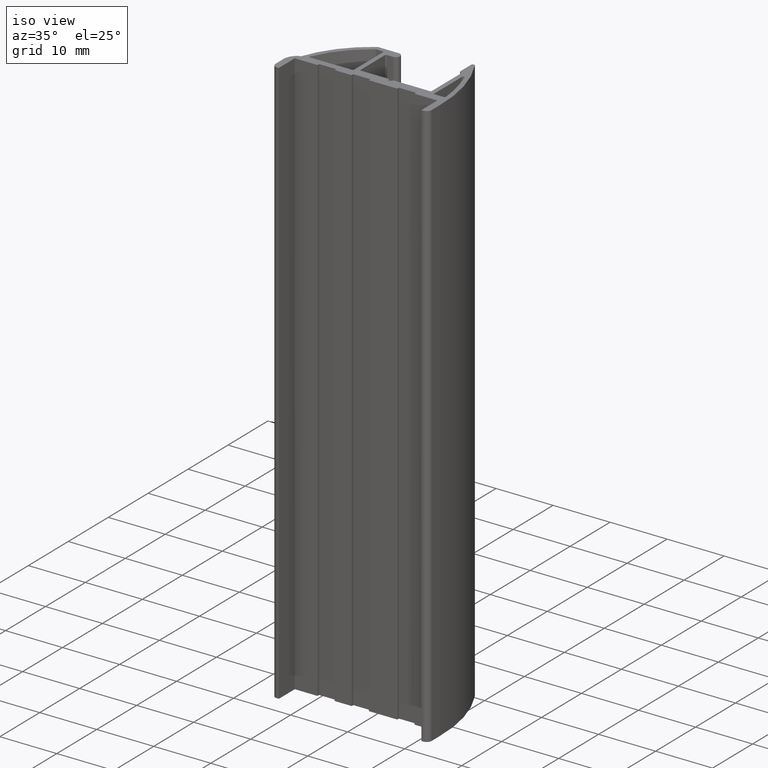
[diagram: clean part render]
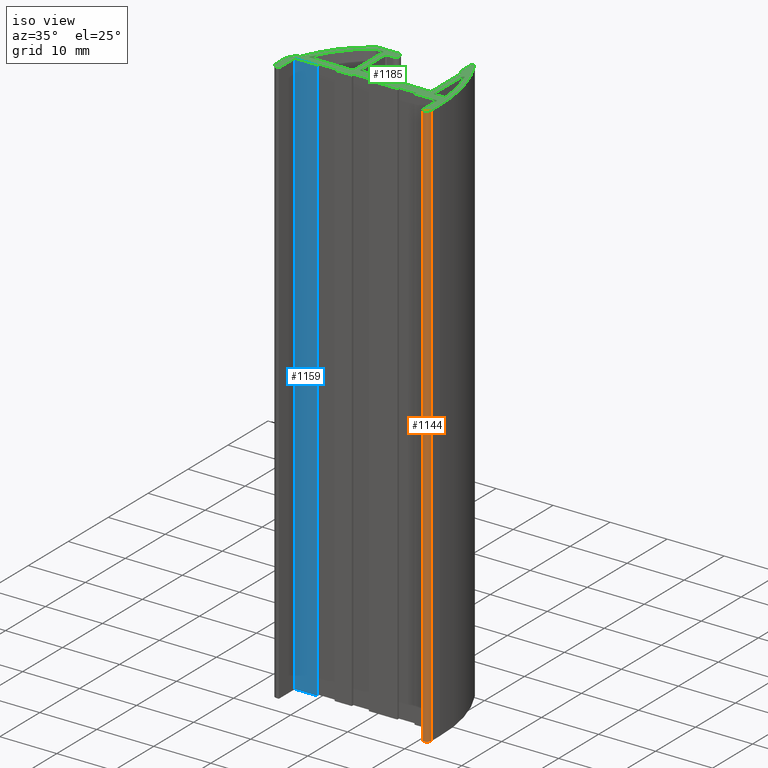
[diagram: same view with three faces highlighted in distinct colors, each labeled with its STEP entity id]
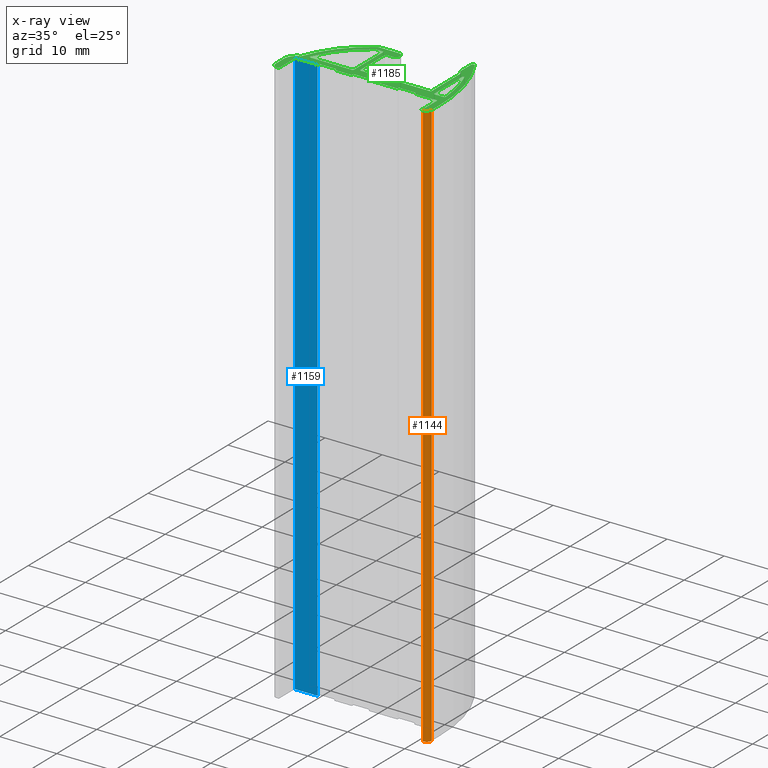
[diagram: x-ray of the same camera — body ghosted, the three highlighted faces saturated]
A machine part, iso view with three faces highlighted in distinct colors.
The next image is the same camera in x-ray (body ghosted, the three faces saturated) — at least one of them is partly hidden behind the body in this view.
Their STEP definitions:

[orange] entity #1144 — the highlighted cylindrical surface (edge-blend (fillet) strip) has radius 0.9 mm, axis along (0, 0, 1).
#39=CIRCLE('',#1223,0.9);
#50=CIRCLE('',#1237,0.9);
#71=CYLINDRICAL_SURFACE('',#1236,0.9);
#99=FACE_OUTER_BOUND('',#160,.T.);
#160=EDGE_LOOP('',(#868,#869,#870,#871));
#262=LINE('',#1803,#391);
#263=LINE('',#1807,#392);
#391=VECTOR('',#1445,100.);
#392=VECTOR('',#1450,100.);
#493=VERTEX_POINT('',#1713);
#494=VERTEX_POINT('',#1715);
#535=VERTEX_POINT('',#1801);
#536=VERTEX_POINT('',#1805);
#621=EDGE_CURVE('',#493,#494,#39,.T.);
#665=EDGE_CURVE('',#493,#535,#262,.T.);
#666=EDGE_CURVE('',#536,#535,#50,.T.);
#667=EDGE_CURVE('',#494,#536,#263,.T.);
#868=ORIENTED_EDGE('',*,*,#665,.T.);
#869=ORIENTED_EDGE('',*,*,#666,.F.);
#870=ORIENTED_EDGE('',*,*,#667,.F.);
#871=ORIENTED_EDGE('',*,*,#621,.F.);
#1144=ADVANCED_FACE('',(#99),#71,.T.);
#1223=AXIS2_PLACEMENT_3D('',#1716,#1386,#1387);
#1236=AXIS2_PLACEMENT_3D('',#1804,#1446,#1447);
#1237=AXIS2_PLACEMENT_3D('',#1806,#1448,#1449);
#1386=DIRECTION('center_axis',(0.,0.,-1.));
#1387=DIRECTION('ref_axis',(0.,-1.,0.));
#1445=DIRECTION('',(0.,0.,1.));
#1446=DIRECTION('center_axis',(0.,0.,1.));
#1447=DIRECTION('ref_axis',(0.,-1.,0.));
#1448=DIRECTION('center_axis',(0.,0.,1.));
#1449=DIRECTION('ref_axis',(0.,-1.,0.));
#1450=DIRECTION('',(0.,0.,1.));
#1713=CARTESIAN_POINT('',(13.5999997456122,-8.34999960171435,-50.));
#1715=CARTESIAN_POINT('',(12.6999997456122,-9.24999960171434,-50.));
#1716=CARTESIAN_POINT('Origin',(12.6999997456122,-8.34999960171434,-50.));
#1801=CARTESIAN_POINT('',(13.5999997456122,-8.34999960171435,50.));
#1803=CARTESIAN_POINT('',(13.5999997456122,-8.34999960171434,0.));
#1804=CARTESIAN_POINT('Origin',(12.6999997456122,-8.34999960171434,0.));
#1805=CARTESIAN_POINT('',(12.6999997456122,-9.24999960171434,50.));
#1806=CARTESIAN_POINT('Origin',(12.6999997456122,-8.34999960171434,50.));
#1807=CARTESIAN_POINT('',(12.6999997456122,-9.24999960171434,0.));

[blue] entity #1159 — the highlighted planar face has unit normal (0, -1, 0).
#114=FACE_OUTER_BOUND('',#175,.T.);
#175=EDGE_LOOP('',(#928,#929,#930,#931));
#243=LINE('',#1746,#372);
#291=LINE('',#1863,#420);
#292=LINE('',#1866,#421);
#293=LINE('',#1867,#422);
#372=VECTOR('',#1402,4.00046634443474);
#420=VECTOR('',#1506,100.);
#421=VECTOR('',#1509,4.00046634443474);
#422=VECTOR('',#1510,100.);
#508=VERTEX_POINT('',#1743);
#509=VERTEX_POINT('',#1745);
#550=VERTEX_POINT('',#1861);
#551=VERTEX_POINT('',#1865);
#636=EDGE_CURVE('',#508,#509,#243,.T.);
#695=EDGE_CURVE('',#508,#550,#291,.T.);
#696=EDGE_CURVE('',#551,#550,#292,.T.);
#697=EDGE_CURVE('',#509,#551,#293,.T.);
#928=ORIENTED_EDGE('',*,*,#695,.T.);
#929=ORIENTED_EDGE('',*,*,#696,.F.);
#930=ORIENTED_EDGE('',*,*,#697,.F.);
#931=ORIENTED_EDGE('',*,*,#636,.F.);
#1110=PLANE('',#1252);
#1159=ADVANCED_FACE('',(#114),#1110,.T.);
#1252=AXIS2_PLACEMENT_3D('',#1864,#1507,#1508);
#1402=DIRECTION('',(-1.,-8.32570202348768E-16,0.));
#1506=DIRECTION('',(0.,0.,1.));
#1507=DIRECTION('center_axis',(8.32570202348768E-16,-1.,0.));
#1508=DIRECTION('ref_axis',(1.,7.99360577730113E-16,0.));
#1509=DIRECTION('',(1.,8.32570202348768E-16,0.));
#1510=DIRECTION('',(0.,0.,1.));
#1743=CARTESIAN_POINT('',(-8.59965871170089,-5.24998589637558,-50.));
#1745=CARTESIAN_POINT('',(-12.6001250561356,-5.24998589637558,-50.));
#1746=CARTESIAN_POINT('',(-12.6001250561356,-5.24998589637558,-50.));
#1861=CARTESIAN_POINT('',(-8.59965871170089,-5.24998589637558,50.));
#1863=CARTESIAN_POINT('',(-8.59965871170089,-5.24998589637558,0.));
#1864=CARTESIAN_POINT('Origin',(-12.6001250561356,-5.24998589637558,0.));
#1865=CARTESIAN_POINT('',(-12.6001250561356,-5.24998589637558,50.));
#1866=CARTESIAN_POINT('',(-12.6001250561356,-5.24998589637558,50.));
#1867=CARTESIAN_POINT('',(-12.6001250561356,-5.24998589637558,0.));

[green] entity #1185 — the highlighted planar face has unit normal (0, 0, 1).
#17=FACE_BOUND('',#202,.T.);
#18=FACE_BOUND('',#203,.T.);
#20=CIRCLE('',#1191,0.2);
#22=CIRCLE('',#1194,16.9704085361476);
#24=CIRCLE('',#1197,0.2);
#26=CIRCLE('',#1201,0.2);
#28=CIRCLE('',#1205,0.2);
#30=CIRCLE('',#1208,26.3385591515752);
#32=CIRCLE('',#1211,0.2);
#34=CIRCLE('',#1215,0.2);
#36=CIRCLE('',#1219,0.2);
#49=CIRCLE('',#1234,27.1385591515752);
#50=CIRCLE('',#1237,0.9);
#51=CIRCLE('',#1256,0.9);
#52=CIRCLE('',#1259,2.43199080396239);
#53=CIRCLE('',#1262,17.770408536155);
#54=CIRCLE('',#1264,0.500000000000002);
#55=CIRCLE('',#1267,0.75);
#56=CIRCLE('',#1270,0.200000000000003);
#57=CIRCLE('',#1273,0.2);
#58=CIRCLE('',#1279,0.2);
#59=CIRCLE('',#1284,0.2);
#60=CIRCLE('',#1287,0.2);
#140=FACE_OUTER_BOUND('',#201,.T.);
#201=EDGE_LOOP('',(#1032,#1033,#1034,#1035,#1036,#1037,#1038,#1039,#1040,
#1041,#1042,#1043,#1044,#1045,#1046,#1047,#1048,#1049,#1050,#1051,#1052,
#1053,#1054,#1055,#1056,#1057,#1058,#1059,#1060,#1061,#1062,#1063,#1064,
#1065,#1066,#1067,#1068,#1069,#1070,#1071,#1072,#1073,#1074));
#202=EDGE_LOOP('',(#1075,#1076,#1077,#1078,#1079,#1080,#1081,#1082));
#203=EDGE_LOOP('',(#1083,#1084,#1085,#1086,#1087,#1088));
#207=LINE('',#1631,#336);
#213=LINE('',#1655,#342);
#217=LINE('',#1667,#346);
#223=LINE('',#1691,#352);
#227=LINE('',#1703,#356);
#261=LINE('',#1802,#390);
#264=LINE('',#1810,#393);
#266=LINE('',#1814,#395);
#268=LINE('',#1818,#397);
#270=LINE('',#1822,#399);
#272=LINE('',#1826,#401);
#274=LINE('',#1830,#403);
#276=LINE('',#1834,#405);
#278=LINE('',#1838,#407);
#280=LINE('',#1842,#409);
#282=LINE('',#1846,#411);
#284=LINE('',#1850,#413);
#286=LINE('',#1854,#415);
#288=LINE('',#1858,#417);
#290=LINE('',#1862,#419);
#292=LINE('',#1866,#421);
#294=LINE('',#1870,#423);
#296=LINE('',#1874,#425);
#299=LINE('',#1882,#428);
#302=LINE('',#1890,#431);
#306=LINE('',#1902,#435);
#309=LINE('',#1910,#438);
#312=LINE('',#1918,#441);
#315=LINE('',#1926,#444);
#317=LINE('',#1930,#446);
#319=LINE('',#1934,#448);
#321=LINE('',#1938,#450);
#324=LINE('',#1946,#453);
#326=LINE('',#1950,#455);
#328=LINE('',#1954,#457);
#331=LINE('',#1962,#460);
#336=VECTOR('',#1296,7.3427607222717);
#342=VECTOR('',#1322,1.14149556564396);
#346=VECTOR('',#1334,7.30000000000001);
#352=VECTOR('',#1360,1.59439573474082);
#356=VECTOR('',#1372,6.8960815346862);
#390=VECTOR('',#1444,1.97843941859135);
#393=VECTOR('',#1453,0.299658244272596);
#395=VECTOR('',#1457,4.00001370533875);
#397=VECTOR('',#1461,4.00000021304052);
#399=VECTOR('',#1465,0.400000000000005);
#401=VECTOR('',#1469,3.);
#403=VECTOR('',#1473,0.400000000000004);
#405=VECTOR('',#1477,5.);
#407=VECTOR('',#1481,0.399999601714623);
#409=VECTOR('',#1485,3.00034128829927);
#411=VECTOR('',#1489,0.399999601714622);
#413=VECTOR('',#1493,2.99965871170073);
#415=VECTOR('',#1497,0.400000000000006);
#417=VECTOR('',#1501,3.);
#419=VECTOR('',#1505,0.400000000000005);
#421=VECTOR('',#1509,4.00046634443474);
#423=VECTOR('',#1513,4.00001370533876);
#425=VECTOR('',#1517,0.299999999999838);
#428=VECTOR('',#1526,2.00307715374834);
#431=VECTOR('',#1535,0.300000000017442);
#435=VECTOR('',#1549,3.53870038560117);
#438=VECTOR('',#1558,1.04999999999637);
#441=VECTOR('',#1567,6.10000000000082);
#444=VECTOR('',#1576,4.80000000000032);
#446=VECTOR('',#1580,0.707106781187492);
#448=VECTOR('',#1584,0.707106781185504);
#450=VECTOR('',#1588,6.29999974563083);
#453=VECTOR('',#1597,7.30000039828612);
#455=VECTOR('',#1601,0.707106781185458);
#457=VECTOR('',#1605,2.80000000000035);
#460=VECTOR('',#1614,0.184908010167617);
#462=VERTEX_POINT('',#1624);
#465=VERTEX_POINT('',#1629);
#467=VERTEX_POINT('',#1635);
#469=VERTEX_POINT('',#1641);
#471=VERTEX_POINT('',#1647);
#473=VERTEX_POINT('',#1653);
#475=VERTEX_POINT('',#1659);
#477=VERTEX_POINT('',#1665);
#478=VERTEX_POINT('',#1672);
#481=VERTEX_POINT('',#1677);
#483=VERTEX_POINT('',#1683);
#485=VERTEX_POINT('',#1689);
#487=VERTEX_POINT('',#1695);
#489=VERTEX_POINT('',#1701);
#533=VERTEX_POINT('',#1795);
#534=VERTEX_POINT('',#1797);
#535=VERTEX_POINT('',#1801);
#536=VERTEX_POINT('',#1805);
#537=VERTEX_POINT('',#1809);
#538=VERTEX_POINT('',#1813);
#539=VERTEX_POINT('',#1817);
#540=VERTEX_POINT('',#1821);
#541=VERTEX_POINT('',#1825);
#542=VERTEX_POINT('',#1829);
#543=VERTEX_POINT('',#1833);
#544=VERTEX_POINT('',#1837);
#545=VERTEX_POINT('',#1841);
#546=VERTEX_POINT('',#1845);
#547=VERTEX_POINT('',#1849);
#548=VERTEX_POINT('',#1853);
#549=VERTEX_POINT('',#1857);
#550=VERTEX_POINT('',#1861);
#551=VERTEX_POINT('',#1865);
#552=VERTEX_POINT('',#1869);
#553=VERTEX_POINT('',#1873);
#554=VERTEX_POINT('',#1877);
#555=VERTEX_POINT('',#1881);
#556=VERTEX_POINT('',#1885);
#557=VERTEX_POINT('',#1889);
#558=VERTEX_POINT('',#1893);
#559=VERTEX_POINT('',#1897);
#560=VERTEX_POINT('',#1901);
#561=VERTEX_POINT('',#1905);
#562=VERTEX_POINT('',#1909);
#563=VERTEX_POINT('',#1913);
#564=VERTEX_POINT('',#1917);
#565=VERTEX_POINT('',#1921);
#566=VERTEX_POINT('',#1925);
#567=VERTEX_POINT('',#1929);
#568=VERTEX_POINT('',#1933);
#569=VERTEX_POINT('',#1937);
#570=VERTEX_POINT('',#1941);
#571=VERTEX_POINT('',#1945);
#572=VERTEX_POINT('',#1949);
#573=VERTEX_POINT('',#1953);
#574=VERTEX_POINT('',#1957);
#575=VERTEX_POINT('',#1961);
#579=EDGE_CURVE('',#462,#465,#207,.T.);
#582=EDGE_CURVE('',#465,#467,#20,.T.);
#585=EDGE_CURVE('',#467,#469,#22,.T.);
#588=EDGE_CURVE('',#469,#471,#24,.T.);
#591=EDGE_CURVE('',#471,#473,#213,.T.);
#594=EDGE_CURVE('',#473,#475,#26,.T.);
#597=EDGE_CURVE('',#475,#477,#217,.T.);
#599=EDGE_CURVE('',#477,#462,#28,.T.);
#603=EDGE_CURVE('',#478,#481,#30,.T.);
#606=EDGE_CURVE('',#481,#483,#32,.T.);
#609=EDGE_CURVE('',#483,#485,#223,.T.);
#612=EDGE_CURVE('',#485,#487,#34,.T.);
#615=EDGE_CURVE('',#487,#489,#227,.T.);
#617=EDGE_CURVE('',#489,#478,#36,.T.);
#662=EDGE_CURVE('',#534,#533,#49,.T.);
#664=EDGE_CURVE('',#535,#534,#261,.T.);
#666=EDGE_CURVE('',#536,#535,#50,.T.);
#668=EDGE_CURVE('',#537,#536,#264,.T.);
#670=EDGE_CURVE('',#538,#537,#266,.T.);
#672=EDGE_CURVE('',#539,#538,#268,.T.);
#674=EDGE_CURVE('',#540,#539,#270,.T.);
#676=EDGE_CURVE('',#541,#540,#272,.T.);
#678=EDGE_CURVE('',#542,#541,#274,.T.);
#680=EDGE_CURVE('',#543,#542,#276,.T.);
#682=EDGE_CURVE('',#544,#543,#278,.T.);
#684=EDGE_CURVE('',#545,#544,#280,.T.);
#686=EDGE_CURVE('',#546,#545,#282,.T.);
#688=EDGE_CURVE('',#547,#546,#284,.T.);
#690=EDGE_CURVE('',#548,#547,#286,.T.);
#692=EDGE_CURVE('',#549,#548,#288,.T.);
#694=EDGE_CURVE('',#550,#549,#290,.T.);
#696=EDGE_CURVE('',#551,#550,#292,.T.);
#698=EDGE_CURVE('',#552,#551,#294,.T.);
#700=EDGE_CURVE('',#553,#552,#296,.T.);
#702=EDGE_CURVE('',#554,#553,#51,.T.);
#704=EDGE_CURVE('',#555,#554,#299,.T.);
#706=EDGE_CURVE('',#556,#555,#52,.T.);
#708=EDGE_CURVE('',#557,#556,#302,.T.);
#710=EDGE_CURVE('',#558,#557,#53,.T.);
#712=EDGE_CURVE('',#559,#558,#54,.T.);
#714=EDGE_CURVE('',#560,#559,#306,.T.);
#716=EDGE_CURVE('',#561,#560,#55,.T.);
#718=EDGE_CURVE('',#562,#561,#309,.T.);
#720=EDGE_CURVE('',#563,#562,#56,.T.);
#722=EDGE_CURVE('',#564,#563,#312,.T.);
#724=EDGE_CURVE('',#565,#564,#57,.T.);
#726=EDGE_CURVE('',#566,#565,#315,.T.);
#728=EDGE_CURVE('',#567,#566,#317,.T.);
#730=EDGE_CURVE('',#568,#567,#319,.T.);
#732=EDGE_CURVE('',#569,#568,#321,.T.);
#734=EDGE_CURVE('',#570,#569,#58,.T.);
#736=EDGE_CURVE('',#571,#570,#324,.T.);
#738=EDGE_CURVE('',#572,#571,#326,.T.);
#740=EDGE_CURVE('',#573,#572,#328,.T.);
#742=EDGE_CURVE('',#574,#573,#59,.T.);
#744=EDGE_CURVE('',#575,#574,#331,.T.);
#746=EDGE_CURVE('',#533,#575,#60,.T.);
#1032=ORIENTED_EDGE('',*,*,#746,.T.);
#1033=ORIENTED_EDGE('',*,*,#744,.T.);
#1034=ORIENTED_EDGE('',*,*,#742,.T.);
#1035=ORIENTED_EDGE('',*,*,#740,.T.);
#1036=ORIENTED_EDGE('',*,*,#738,.T.);
#1037=ORIENTED_EDGE('',*,*,#736,.T.);
#1038=ORIENTED_EDGE('',*,*,#734,.T.);
#1039=ORIENTED_EDGE('',*,*,#732,.T.);
#1040=ORIENTED_EDGE('',*,*,#730,.T.);
#1041=ORIENTED_EDGE('',*,*,#728,.T.);
#1042=ORIENTED_EDGE('',*,*,#726,.T.);
#1043=ORIENTED_EDGE('',*,*,#724,.T.);
#1044=ORIENTED_EDGE('',*,*,#722,.T.);
#1045=ORIENTED_EDGE('',*,*,#720,.T.);
#1046=ORIENTED_EDGE('',*,*,#718,.T.);
#1047=ORIENTED_EDGE('',*,*,#716,.T.);
#1048=ORIENTED_EDGE('',*,*,#714,.T.);
#1049=ORIENTED_EDGE('',*,*,#712,.T.);
#1050=ORIENTED_EDGE('',*,*,#710,.T.);
#1051=ORIENTED_EDGE('',*,*,#708,.T.);
#1052=ORIENTED_EDGE('',*,*,#706,.T.);
#1053=ORIENTED_EDGE('',*,*,#704,.T.);
#1054=ORIENTED_EDGE('',*,*,#702,.T.);
#1055=ORIENTED_EDGE('',*,*,#700,.T.);
#1056=ORIENTED_EDGE('',*,*,#698,.T.);
#1057=ORIENTED_EDGE('',*,*,#696,.T.);
#1058=ORIENTED_EDGE('',*,*,#694,.T.);
#1059=ORIENTED_EDGE('',*,*,#692,.T.);
#1060=ORIENTED_EDGE('',*,*,#690,.T.);
#1061=ORIENTED_EDGE('',*,*,#688,.T.);
#1062=ORIENTED_EDGE('',*,*,#686,.T.);
#1063=ORIENTED_EDGE('',*,*,#684,.T.);
#1064=ORIENTED_EDGE('',*,*,#682,.T.);
#1065=ORIENTED_EDGE('',*,*,#680,.T.);
#1066=ORIENTED_EDGE('',*,*,#678,.T.);
#1067=ORIENTED_EDGE('',*,*,#676,.T.);
#1068=ORIENTED_EDGE('',*,*,#674,.T.);
#1069=ORIENTED_EDGE('',*,*,#672,.T.);
#1070=ORIENTED_EDGE('',*,*,#670,.T.);
#1071=ORIENTED_EDGE('',*,*,#668,.T.);
#1072=ORIENTED_EDGE('',*,*,#666,.T.);
#1073=ORIENTED_EDGE('',*,*,#664,.T.);
#1074=ORIENTED_EDGE('',*,*,#662,.T.);
#1075=ORIENTED_EDGE('',*,*,#579,.T.);
#1076=ORIENTED_EDGE('',*,*,#582,.T.);
#1077=ORIENTED_EDGE('',*,*,#585,.T.);
#1078=ORIENTED_EDGE('',*,*,#588,.T.);
#1079=ORIENTED_EDGE('',*,*,#591,.T.);
#1080=ORIENTED_EDGE('',*,*,#594,.T.);
#1081=ORIENTED_EDGE('',*,*,#597,.T.);
#1082=ORIENTED_EDGE('',*,*,#599,.T.);
#1083=ORIENTED_EDGE('',*,*,#603,.T.);
#1084=ORIENTED_EDGE('',*,*,#606,.T.);
#1085=ORIENTED_EDGE('',*,*,#609,.T.);
#1086=ORIENTED_EDGE('',*,*,#612,.T.);
#1087=ORIENTED_EDGE('',*,*,#615,.T.);
#1088=ORIENTED_EDGE('',*,*,#617,.T.);
#1126=PLANE('',#1288);
#1185=ADVANCED_FACE('',(#140,#17,#18),#1126,.T.);
#1191=AXIS2_PLACEMENT_3D('',#1637,#1302,#1303);
#1194=AXIS2_PLACEMENT_3D('',#1643,#1309,#1310);
#1197=AXIS2_PLACEMENT_3D('',#1649,#1316,#1317);
#1201=AXIS2_PLACEMENT_3D('',#1661,#1328,#1329);
#1205=AXIS2_PLACEMENT_3D('',#1670,#1339,#1340);
#1208=AXIS2_PLACEMENT_3D('',#1679,#1347,#1348);
#1211=AXIS2_PLACEMENT_3D('',#1685,#1354,#1355);
#1215=AXIS2_PLACEMENT_3D('',#1697,#1366,#1367);
#1219=AXIS2_PLACEMENT_3D('',#1706,#1377,#1378);
#1234=AXIS2_PLACEMENT_3D('',#1798,#1439,#1440);
#1237=AXIS2_PLACEMENT_3D('',#1806,#1448,#1449);
#1256=AXIS2_PLACEMENT_3D('',#1878,#1521,#1522);
#1259=AXIS2_PLACEMENT_3D('',#1886,#1530,#1531);
#1262=AXIS2_PLACEMENT_3D('',#1894,#1539,#1540);
#1264=AXIS2_PLACEMENT_3D('',#1898,#1544,#1545);
#1267=AXIS2_PLACEMENT_3D('',#1906,#1553,#1554);
#1270=AXIS2_PLACEMENT_3D('',#1914,#1562,#1563);
#1273=AXIS2_PLACEMENT_3D('',#1922,#1571,#1572);
#1279=AXIS2_PLACEMENT_3D('',#1942,#1592,#1593);
#1284=AXIS2_PLACEMENT_3D('',#1958,#1609,#1610);
#1287=AXIS2_PLACEMENT_3D('',#1965,#1618,#1619);
#1288=AXIS2_PLACEMENT_3D('',#1966,#1620,#1621);
#1296=DIRECTION('',(-1.,2.26799510419361E-16,0.));
#1302=DIRECTION('center_axis',(0.,0.,-1.));
#1303=DIRECTION('ref_axis',(-0.915281034034822,0.402815874483798,0.));
#1309=DIRECTION('center_axis',(0.,0.,-1.));
#1310=DIRECTION('ref_axis',(-0.545506788925575,0.838106403290244,0.));
#1316=DIRECTION('center_axis',(0.,0.,-1.));
#1317=DIRECTION('ref_axis',(0.,1.,0.));
#1322=DIRECTION('',(1.,0.,0.));
#1328=DIRECTION('center_axis',(0.,0.,-1.));
#1329=DIRECTION('ref_axis',(1.,0.,0.));
#1334=DIRECTION('',(0.,-1.,0.));
#1339=DIRECTION('center_axis',(0.,0.,-1.));
#1340=DIRECTION('ref_axis',(0.,-1.,0.));
#1347=DIRECTION('center_axis',(0.,0.,-1.));
#1348=DIRECTION('ref_axis',(0.995825937143963,0.0912726843658481,0.));
#1354=DIRECTION('center_axis',(0.,0.,-1.));
#1355=DIRECTION('ref_axis',(0.,-1.,0.));
#1360=DIRECTION('',(-1.,0.,0.));
#1366=DIRECTION('center_axis',(0.,0.,-1.));
#1367=DIRECTION('ref_axis',(-1.,0.,0.));
#1372=DIRECTION('',(0.,1.,0.));
#1377=DIRECTION('center_axis',(0.,0.,-1.));
#1378=DIRECTION('ref_axis',(0.934828093862124,0.355100598318431,0.));
#1439=DIRECTION('center_axis',(0.,0.,1.));
#1440=DIRECTION('ref_axis',(0.999871042393538,-0.0160592211162188,0.));
#1444=DIRECTION('',(3.59143034193085E-14,1.,0.));
#1448=DIRECTION('center_axis',(0.,0.,1.));
#1449=DIRECTION('ref_axis',(0.,-1.,0.));
#1453=DIRECTION('',(1.,0.,0.));
#1457=DIRECTION('',(0.,-1.,0.));
#1461=DIRECTION('',(1.,-2.77555741373634E-15,0.));
#1465=DIRECTION('',(0.,-1.,0.));
#1469=DIRECTION('',(1.,0.,0.));
#1473=DIRECTION('',(0.,1.,0.));
#1477=DIRECTION('',(1.,0.,0.));
#1481=DIRECTION('',(0.,-1.,0.));
#1485=DIRECTION('',(1.,0.,0.));
#1489=DIRECTION('',(0.,1.,0.));
#1493=DIRECTION('',(1.,0.,0.));
#1497=DIRECTION('',(0.,-1.,0.));
#1501=DIRECTION('',(1.,0.,0.));
#1505=DIRECTION('',(0.,1.,0.));
#1509=DIRECTION('',(1.,8.32570202348768E-16,0.));
#1513=DIRECTION('',(1.11021922064253E-15,1.,0.));
#1517=DIRECTION('',(1.,0.,0.));
#1521=DIRECTION('center_axis',(0.,0.,1.));
#1522=DIRECTION('ref_axis',(-1.,0.,0.));
#1526=DIRECTION('',(1.10851748525772E-15,-1.,0.));
#1530=DIRECTION('center_axis',(0.,0.,1.));
#1531=DIRECTION('ref_axis',(-0.506525764905382,0.86222482537156,0.));
#1535=DIRECTION('',(-1.,3.70074341520203E-15,0.));
#1539=DIRECTION('center_axis',(0.,0.,1.));
#1540=DIRECTION('ref_axis',(-0.538237196627833,0.84279340301536,0.));
#1544=DIRECTION('center_axis',(0.,0.,1.));
#1545=DIRECTION('ref_axis',(0.,1.,0.));
#1549=DIRECTION('',(-1.,-1.56868751751718E-16,0.));
#1553=DIRECTION('center_axis',(0.,0.,1.));
#1554=DIRECTION('ref_axis',(0.,-1.,0.));
#1558=DIRECTION('',(1.,1.05735526155142E-15,0.));
#1562=DIRECTION('center_axis',(0.,0.,-1.));
#1563=DIRECTION('ref_axis',(0.,-1.,0.));
#1567=DIRECTION('',(0.,1.,0.));
#1571=DIRECTION('center_axis',(0.,0.,-1.));
#1572=DIRECTION('ref_axis',(1.,0.,0.));
#1576=DIRECTION('',(-1.,0.,0.));
#1580=DIRECTION('',(-0.707106781187541,0.707106781185554,0.));
#1584=DIRECTION('',(-0.707106781185554,-0.707106781187541,0.));
#1588=DIRECTION('',(-1.,2.64338826059902E-16,0.));
#1592=DIRECTION('center_axis',(0.,0.,-1.));
#1593=DIRECTION('ref_axis',(0.,1.,0.));
#1597=DIRECTION('',(0.,-1.,0.));
#1601=DIRECTION('',(0.707106781187541,-0.707106781185554,0.));
#1605=DIRECTION('',(0.,-1.,0.));
#1609=DIRECTION('center_axis',(0.,0.,1.));
#1610=DIRECTION('ref_axis',(0.,1.,0.));
#1614=DIRECTION('',(-1.,-6.00419107651827E-15,0.));
#1618=DIRECTION('center_axis',(0.,0.,1.));
#1619=DIRECTION('ref_axis',(0.865672410573853,0.500610904367109,0.));
#1620=DIRECTION('center_axis',(0.,0.,1.));
#1621=DIRECTION('ref_axis',(1.,0.,0.));
#1624=CARTESIAN_POINT('',(-3.60000025436747,-3.74999960171249,50.));
#1629=CARTESIAN_POINT('',(-10.9427609766392,-3.74999960171249,50.));
#1631=CARTESIAN_POINT('',(-4.74275572232825,-3.74999960171249,50.));
#1635=CARTESIAN_POINT('',(-11.1258171834461,-3.46943642681573,50.));
#1637=CARTESIAN_POINT('Origin',(-10.9427609766392,-3.54999960171249,50.));
#1641=CARTESIAN_POINT('',(-4.85059717779655,3.91762167894556,50.));
#1643=CARTESIAN_POINT('Origin',(4.40687588951251,-10.3053863816512,50.));
#1647=CARTESIAN_POINT('',(-4.74149582001143,3.95000039828751,50.));
#1649=CARTESIAN_POINT('Origin',(-4.74149582001143,3.75000039828751,50.));
#1653=CARTESIAN_POINT('',(-3.60000025436747,3.95000039828751,50.));
#1655=CARTESIAN_POINT('',(-1.0713753611924,3.95000039828751,50.));
#1659=CARTESIAN_POINT('',(-3.40000025436747,3.75000039828751,50.));
#1661=CARTESIAN_POINT('Origin',(-3.60000025436747,3.75000039828751,50.));
#1665=CARTESIAN_POINT('',(-3.40000025436747,-3.54999960171249,50.));
#1667=CARTESIAN_POINT('',(-3.40000025436747,-2.92398339768009,50.));
#1670=CARTESIAN_POINT('Origin',(-3.60000025436747,-3.54999960171249,50.));
#1672=CARTESIAN_POINT('',(11.08696536441,3.41710205263739,50.));
#1677=CARTESIAN_POINT('',(12.6935606678072,-3.53174506483932,50.));
#1679=CARTESIAN_POINT('Origin',(-13.5350596823319,-5.93573606093227,50.));
#1683=CARTESIAN_POINT('',(12.4943954803784,-3.74999960171249,50.));
#1685=CARTESIAN_POINT('Origin',(12.4943954803784,-3.54999960171249,50.));
#1689=CARTESIAN_POINT('',(10.8999997456376,-3.74999960171249,50.));
#1691=CARTESIAN_POINT('',(6.17862463881013,-3.74999960171249,50.));
#1695=CARTESIAN_POINT('',(10.6999997456376,-3.54999960171249,50.));
#1697=CARTESIAN_POINT('Origin',(10.8999997456376,-3.54999960171249,50.));
#1701=CARTESIAN_POINT('',(10.6999997456376,3.34608193297371,50.));
#1703=CARTESIAN_POINT('',(10.6999997456376,0.52405736966301,50.));
#1706=CARTESIAN_POINT('Origin',(10.8999997456376,3.34608193297371,50.));
#1795=CARTESIAN_POINT('',(9.95804223791337,7.65012257915801,50.));
#1797=CARTESIAN_POINT('',(13.5999997456123,-6.371560183123,50.));
#1798=CARTESIAN_POINT('Origin',(-13.5350596823319,-5.93573606093227,50.));
#1801=CARTESIAN_POINT('',(13.5999997456122,-8.34999960171435,50.));
#1802=CARTESIAN_POINT('',(13.5999997456122,-8.34999960171434,50.));
#1805=CARTESIAN_POINT('',(12.6999997456122,-9.24999960171434,50.));
#1806=CARTESIAN_POINT('Origin',(12.6999997456122,-8.34999960171434,50.));
#1809=CARTESIAN_POINT('',(12.4003415013396,-9.24999960171434,50.));
#1810=CARTESIAN_POINT('',(12.4003415013396,-9.24999960171434,50.));
#1813=CARTESIAN_POINT('',(12.4003415013396,-5.24998589637559,50.));
#1814=CARTESIAN_POINT('',(12.4003415013396,-5.24998589637559,50.));
#1817=CARTESIAN_POINT('',(8.40034128829911,-5.24998589637558,50.));
#1818=CARTESIAN_POINT('',(8.40034128829911,-5.24998589637558,50.));
#1821=CARTESIAN_POINT('',(8.40034128829911,-4.84998589637558,50.));
#1822=CARTESIAN_POINT('',(8.40034128829911,-4.84998589637558,50.));
#1825=CARTESIAN_POINT('',(5.40034128829912,-4.84998589637558,50.));
#1826=CARTESIAN_POINT('',(5.40034128829912,-4.84998589637558,50.));
#1829=CARTESIAN_POINT('',(5.40034128829912,-5.24998589637558,50.));
#1830=CARTESIAN_POINT('',(5.40034128829912,-5.24998589637558,50.));
#1833=CARTESIAN_POINT('',(0.400341288299115,-5.24998589637558,50.));
#1834=CARTESIAN_POINT('',(0.400341288299115,-5.24998589637558,50.));
#1837=CARTESIAN_POINT('',(0.400341288299115,-4.84998629466096,50.));
#1838=CARTESIAN_POINT('',(0.400341288299115,-4.84998629466096,50.));
#1841=CARTESIAN_POINT('',(-2.60000000000016,-4.84998629466096,50.));
#1842=CARTESIAN_POINT('',(-2.60000000000016,-4.84998629466096,50.));
#1845=CARTESIAN_POINT('',(-2.60000000000016,-5.24998589637558,50.));
#1846=CARTESIAN_POINT('',(-2.60000000000016,-5.24998589637558,50.));
#1849=CARTESIAN_POINT('',(-5.59965871170089,-5.24998589637558,50.));
#1850=CARTESIAN_POINT('',(-5.59965871170089,-5.24998589637558,50.));
#1853=CARTESIAN_POINT('',(-5.59965871170089,-4.84998589637557,50.));
#1854=CARTESIAN_POINT('',(-5.59965871170089,-4.84998589637557,50.));
#1857=CARTESIAN_POINT('',(-8.59965871170089,-4.84998589637557,50.));
#1858=CARTESIAN_POINT('',(-8.59965871170089,-4.84998589637557,50.));
#1861=CARTESIAN_POINT('',(-8.59965871170089,-5.24998589637558,50.));
#1862=CARTESIAN_POINT('',(-8.59965871170089,-5.24998589637558,50.));
#1865=CARTESIAN_POINT('',(-12.6001250561356,-5.24998589637558,50.));
#1866=CARTESIAN_POINT('',(-12.6001250561356,-5.24998589637558,50.));
#1869=CARTESIAN_POINT('',(-12.6001250561356,-9.24999960171435,50.));
#1870=CARTESIAN_POINT('',(-12.6001250561356,-9.24999960171435,50.));
#1873=CARTESIAN_POINT('',(-12.9001250561355,-9.24999960171435,50.));
#1874=CARTESIAN_POINT('',(-12.9001250561355,-9.24999960171435,50.));
#1877=CARTESIAN_POINT('',(-13.8001250561355,-8.34999960171435,50.));
#1878=CARTESIAN_POINT('Origin',(-12.9001250561355,-8.34999960171435,50.));
#1881=CARTESIAN_POINT('',(-13.8001250561355,-6.346922447966,50.));
#1882=CARTESIAN_POINT('',(-13.8001250561355,-6.346922447966,50.));
#1885=CARTESIAN_POINT('',(-12.600000254393,-4.24999960171429,50.));
#1886=CARTESIAN_POINT('Origin',(-11.3681342521731,-6.346922447966,50.));
#1889=CARTESIAN_POINT('',(-12.3000002543756,-4.2499996017143,50.));
#1890=CARTESIAN_POINT('',(-12.3000002543756,-4.2499996017143,50.));
#1893=CARTESIAN_POINT('',(-5.15781898391887,4.6713967015081,50.));
#1894=CARTESIAN_POINT('Origin',(4.40687588951251,-10.3053863816512,50.));
#1897=CARTESIAN_POINT('',(-4.88870038560496,4.75000000000042,50.));
#1898=CARTESIAN_POINT('Origin',(-4.88870038560496,4.25000000000042,50.));
#1901=CARTESIAN_POINT('',(-1.35000000000379,4.75000000000042,50.));
#1902=CARTESIAN_POINT('',(-1.35000000000379,4.75000000000042,50.));
#1905=CARTESIAN_POINT('',(-1.35000000000379,3.25000000000041,50.));
#1906=CARTESIAN_POINT('Origin',(-1.35000000000379,4.00000000000041,50.));
#1909=CARTESIAN_POINT('',(-2.40000000000016,3.25000000000041,50.));
#1910=CARTESIAN_POINT('',(-2.40000000000016,3.25000000000041,50.));
#1913=CARTESIAN_POINT('',(-2.60000000000016,3.05000000000041,50.));
#1914=CARTESIAN_POINT('Origin',(-2.40000000000016,3.05000000000041,50.));
#1917=CARTESIAN_POINT('',(-2.60000000000016,-3.05000000000041,50.));
#1918=CARTESIAN_POINT('',(-2.60000000000016,-3.05000000000041,50.));
#1921=CARTESIAN_POINT('',(-2.40000000000016,-3.25000000000041,50.));
#1922=CARTESIAN_POINT('Origin',(-2.40000000000016,-3.05000000000041,50.));
#1925=CARTESIAN_POINT('',(2.40000000000016,-3.25000000000041,50.));
#1926=CARTESIAN_POINT('',(2.40000000000016,-3.25000000000041,50.));
#1929=CARTESIAN_POINT('',(2.90000000000153,-3.75000000000038,50.));
#1930=CARTESIAN_POINT('',(2.90000000000153,-3.75000000000038,50.));
#1933=CARTESIAN_POINT('',(3.40000000000009,-3.25000000000041,50.));
#1934=CARTESIAN_POINT('',(3.40000000000009,-3.25000000000041,50.));
#1937=CARTESIAN_POINT('',(9.69999974563092,-3.25000000000041,50.));
#1938=CARTESIAN_POINT('',(9.69999974563092,-3.25000000000041,50.));
#1941=CARTESIAN_POINT('',(9.89999974563092,-3.05000000000041,50.));
#1942=CARTESIAN_POINT('Origin',(9.69999974563092,-3.05000000000041,50.));
#1945=CARTESIAN_POINT('',(9.89999974563092,4.25000039828571,50.));
#1946=CARTESIAN_POINT('',(9.89999974563092,4.25000039828571,50.));
#1949=CARTESIAN_POINT('',(9.39999974563099,4.75000039828424,50.));
#1950=CARTESIAN_POINT('',(9.39999974563099,4.75000039828424,50.));
#1953=CARTESIAN_POINT('',(9.39999974563099,7.55000039828459,50.));
#1954=CARTESIAN_POINT('',(9.39999974563099,7.55000039828459,50.));
#1957=CARTESIAN_POINT('',(9.59999974563098,7.75000039828459,50.));
#1958=CARTESIAN_POINT('Origin',(9.59999974563098,7.55000039828459,50.));
#1961=CARTESIAN_POINT('',(9.7849077557986,7.75000039828459,50.));
#1962=CARTESIAN_POINT('',(9.7849077557986,7.75000039828459,50.));
#1965=CARTESIAN_POINT('Origin',(9.7849077557986,7.55000039828459,50.));
#1966=CARTESIAN_POINT('Origin',(1.45724953198268,-2.29796719364768,50.));